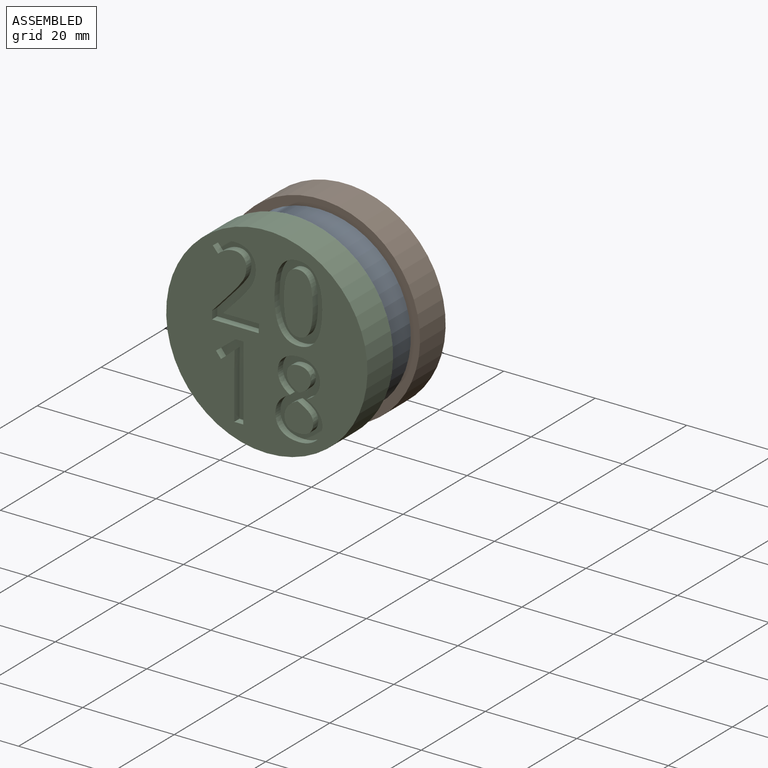
[diagram: assembled view]
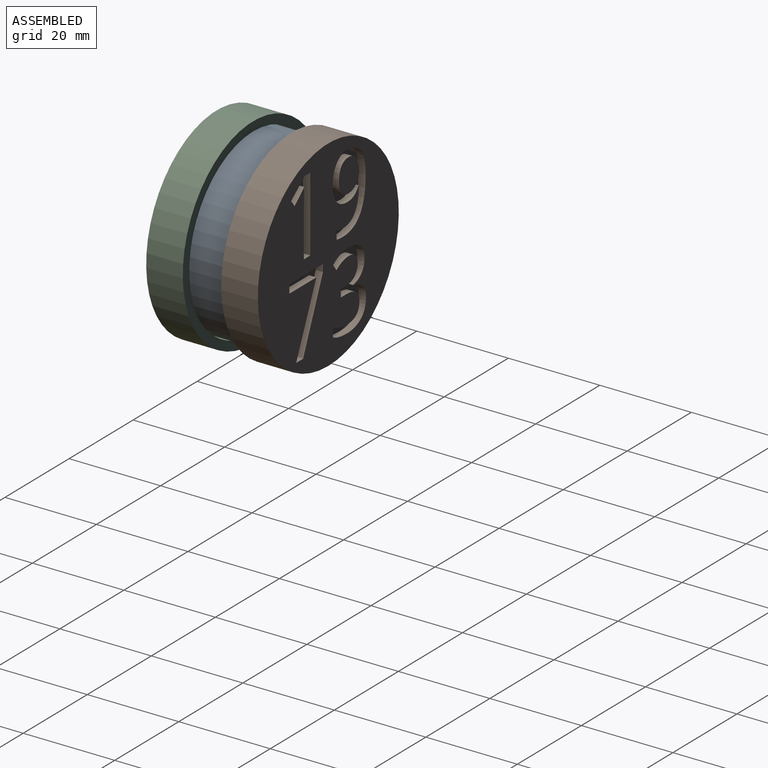
[diagram: assembled view, second angle]
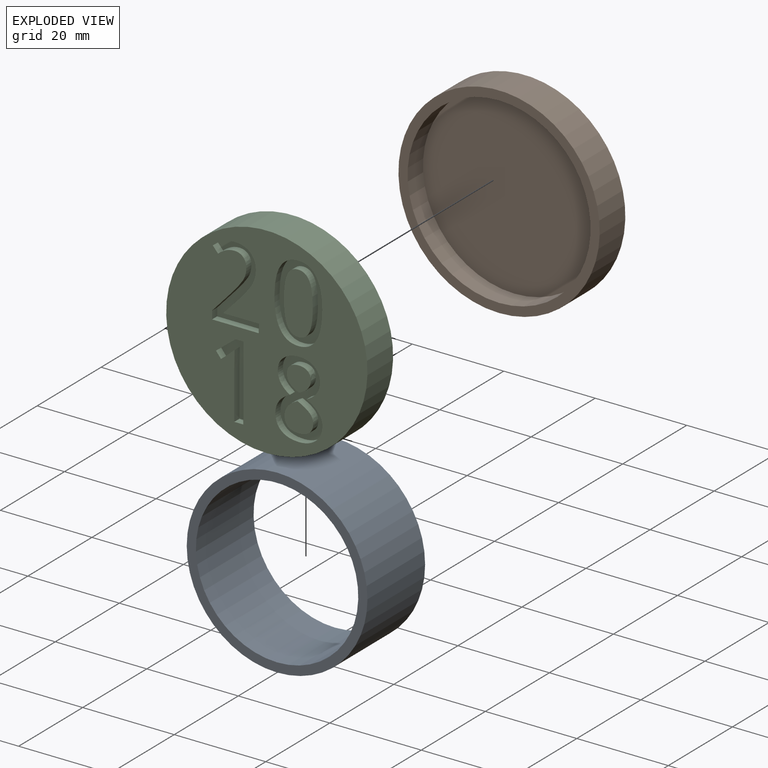
[diagram: exploded view]
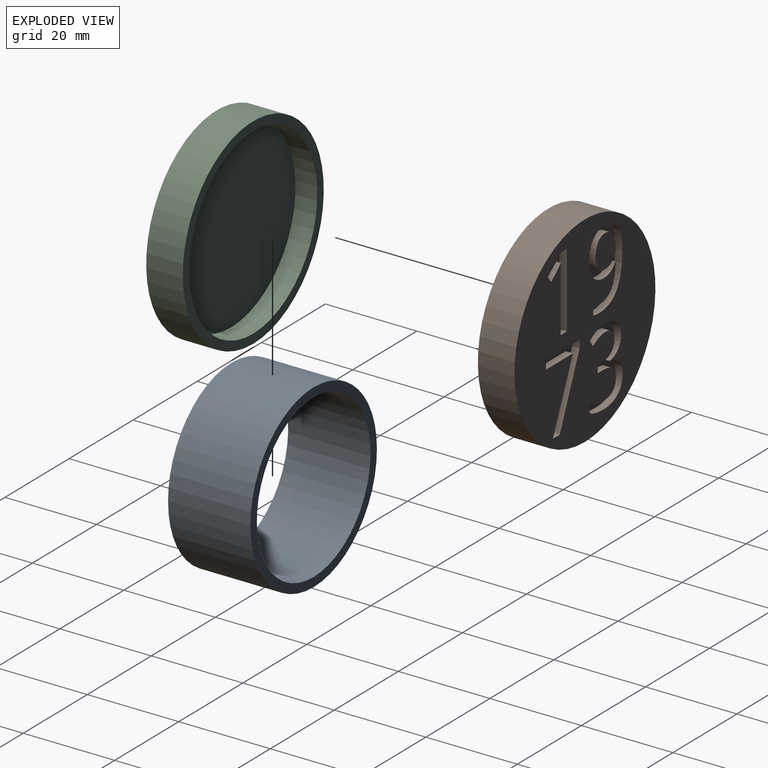
[diagram: exploded view, second angle]
ASSEMBLY  parts=3 mates=2
PART A: 4 faces, bbox 39.5x18x39.5 mm
  f0: cylinder r=17.75mm len=35.5mm, axis (0,1,0), area 2007.5mm2, adj f2,f3
  f1: cylinder r=19.75mm len=39.5mm, axis (0,1,0), area 2233.7mm2, adj f2,f3
  f2: plane 39.5x39.5mm, normal (0,-1,0), area 235.6mm2, adj f0,f1
  f3: plane 39.5x39.5mm, normal (0,1,0), area 235.6mm2, adj f0,f1
PART B: 71 faces, bbox 44x8x44 mm
  f0: plane 44x44mm, normal (0,-1,0), area 1258.5mm2, adj f1,f5,f6,f7,f8,f9,f10,f11
  f1: cylinder r=22mm len=44mm, axis (0,1,0), area 1105.8mm2, adj f0,f2
  f2: plane 44x44mm, normal (0,1,0), area 263.9mm2, adj f1,f3
  f3: cylinder r=20mm len=40mm, axis (0,1,0), area 603.2mm2, adj f2,f4
  f4: plane 40x40mm, normal (0,1,0), area 1256.6mm2, adj f3
  f5: plane 1.97x1.6mm, normal (0,0,1), area 3.2mm2, adj f0,f6,f13,f14
  f6: plane 16.36x1.6mm, normal (-1,0,0), area 26.2mm2, adj f0,f5,f7,f14
  f7: plane 1.68x1.6mm, normal (0,0,-1), area 2.7mm2, adj f0,f6,f8,f14
  f8: plane 4.29x3.35mm, normal (0.62,0,-0.79), area 8.7mm2, adj f0,f7,f9,f14
  f9: plane 1.6x1.38mm, normal (0.79,0,0.62), area 2.8mm2, adj f0,f8,f10,f14
  f10: plane 1.65x1.6mm, normal (-0.63,0,0.77), area 3.4mm2, adj f0,f9,f11,f14
  f11: extruded ~1.6x1.35mm, area 3mm2, adj f0,f10,f12,f14
  f12: extruded ~4.04x1.6mm, area 6.5mm2, adj f0,f11,f13,f14
  f13: plane 10.22x1.6mm, normal (1,0,0), area 16.3mm2, adj f0,f5,f12,f14
  f14: plane 16.36x5.97mm, normal (0,-1,0), area 39.5mm2, adj f5,f6,f7,f8,f9,f10,f11,f12
  f15: plane 14.5x6.3mm, normal (0.92,0,-0.4), area 25.3mm2, adj f0,f16,f21,f22
  f16: plane 2.17x1.6mm, normal (0,0,1), area 3.5mm2, adj f0,f15,f17,f22
  f17: plane 14.74x6.21mm, normal (-0.92,0,0.39), area 25.6mm2, adj f0,f16,f18,f22
  f18: plane 1.62x1.6mm, normal (-1,0,0), area 2.6mm2, adj f0,f17,f19,f22
  f19: plane 10.52x1.6mm, normal (0,0,-1), area 16.8mm2, adj f0,f18,f20,f22
  f20: plane 1.86x1.6mm, normal (1,0,0), area 3mm2, adj f0,f19,f21,f22
  f21: plane 8.44x1.6mm, normal (0,0,1), area 13.5mm2, adj f0,f15,f20,f22
  f22: plane 16.36x10.52mm, normal (0,-1,0), area 49.6mm2, adj f15,f16,f17,f18,f19,f20,f21
  f23: plane 1.6x0.06mm, normal (-1,0,0), area 0.1mm2, adj f0,f24,f45,f46
  f24: extruded ~2.62x1.6mm, area 4.8mm2, adj f0,f23,f25,f46
  f25: extruded ~2.58x1.6mm, area 4.5mm2, adj f0,f24,f26,f46
  f26: extruded ~2.95x1.6mm, area 5.3mm2, adj f0,f25,f27,f46
  f27: extruded ~3.6x1.6mm, area 6.1mm2, adj f0,f26,f28,f46
  f28: extruded ~4.88x1.68mm, area 8.4mm2, adj f0,f27,f29,f46
  f29: plane 1.6x1.4mm, normal (0.81,0,0.59), area 2.8mm2, adj f0,f28,f30,f46
  f30: extruded ~3.85x1.6mm, area 6.6mm2, adj f0,f29,f31,f46
  f31: extruded ~2.04x1.6mm, area 3.5mm2, adj f0,f30,f32,f46
  f32: extruded ~1.8x1.6mm, area 3.2mm2, adj f0,f31,f33,f46
  f33: extruded ~2.25x1.6mm, area 4.1mm2, adj f0,f32,f34,f46
  f34: extruded ~2.78x1.6mm, area 4.7mm2, adj f0,f33,f35,f46
  f35: plane 1.6x1.49mm, normal (0,0,-1), area 2.4mm2, adj f0,f34,f36,f46
  f36: plane 1.69x1.6mm, normal (1,0,0), area 2.7mm2, adj f0,f35,f37,f46
  f37: plane 1.6x1.49mm, normal (0,0,1), area 2.4mm2, adj f0,f36,f38,f46
  f38: extruded ~4.26x2.89mm, area 9.4mm2, adj f0,f37,f39,f46
  f39: extruded ~3.96x3.23mm, area 9.4mm2, adj f0,f38,f40,f46
  f40: extruded ~4.29x1.6mm, area 7.1mm2, adj f0,f39,f41,f46
  f41: plane 1.91x1.6mm, normal (1,0,0), area 3mm2, adj f0,f40,f42,f46
  f42: extruded ~4.33x1.6mm, area 7.1mm2, adj f0,f41,f43,f46
  f43: extruded ~4.46x1.6mm, area 7.6mm2, adj f0,f42,f44,f46
  f44: extruded ~3.58x1.6mm, area 6.4mm2, adj f0,f43,f45,f46
  f45: extruded ~4.04x3.9mm, area 10mm2, adj f0,f23,f44,f46
  f46: plane 16.82x10.34mm, normal (0,-1,0), area 64.1mm2, adj f23,f24,f25,f26,f27,f28,f29,f30
  f47: extruded ~2.5x1.6mm, area 4.3mm2, adj f48,f68,f69,f70
  f48: extruded ~2.81x1.6mm, area 4.8mm2, adj f47,f49,f69,f70
  f49: extruded ~2.23x1.6mm, area 4mm2, adj f48,f50,f69,f70
  f50: extruded ~2.38x1.6mm, area 4.5mm2, adj f49,f51,f69,f70
  f51: extruded ~2.93x1.6mm, area 5mm2, adj f50,f52,f69,f70
  f52: extruded ~2.07x1.6mm, area 3.8mm2, adj f51,f53,f69,f70
  f53: extruded ~2.38x1.6mm, area 4.2mm2, adj f52,f68,f69,f70
  f54: plane 1.74x1.6mm, normal (1,0,0), area 2.8mm2, adj f0,f55,f67,f69
  f55: extruded ~1.93x1.6mm, area 3.1mm2, adj f0,f54,f56,f69
  f56: extruded ~9.6x7.15mm, area 21.8mm2, adj f0,f55,f57,f69
  f57: extruded ~5.3x1.6mm, area 8.9mm2, adj f0,f56,f58,f69
  f58: extruded ~3.9x1.91mm, area 7.2mm2, adj f0,f57,f59,f69
  f59: extruded ~3.62x1.6mm, area 6.5mm2, adj f0,f58,f60,f69
  f60: extruded ~4.03x1.6mm, area 7mm2, adj f0,f59,f61,f69
  f61: extruded ~3.65x1.6mm, area 6.3mm2, adj f0,f60,f62,f69
  f62: extruded ~3.41x1.6mm, area 6mm2, adj f0,f61,f63,f69
  f63: extruded ~3.45x1.91mm, area 6.6mm2, adj f0,f62,f64,f69
  f64: plane 1.6x0.13mm, normal (0,0,1), area 0.2mm2, adj f0,f63,f65,f69
  f65: extruded ~5x1.6mm, area 8.4mm2, adj f0,f64,f66,f69
  f66: extruded ~3.77x1.6mm, area 6.8mm2, adj f0,f65,f67,f69
  f67: extruded ~1.86x1.6mm, area 3mm2, adj f0,f54,f66,f69
  f68: extruded ~2.19x1.6mm, area 3.9mm2, adj f47,f53,f69,f70
  f69: plane 16.82x10.31mm, normal (0,-1,0), area 72.5mm2, adj f47,f48,f49,f50,f51,f52,f53,f54
  f70: plane 7.15x6.3mm, normal (0,-1,0), area 36.3mm2, adj f47,f48,f49,f50,f51,f52,f53,f68
PART C: 79 faces, bbox 44x8x44 mm
  f0: plane 44x44mm, normal (0,-1,0), area 1139.5mm2, adj f1,f5,f6,f7,f8,f9,f10,f11
  f1: cylinder r=22mm len=44mm, axis (0,1,0), area 1105.8mm2, adj f0,f2
  f2: plane 44x44mm, normal (0,1,0), area 263.9mm2, adj f1,f3
  f3: cylinder r=20mm len=40mm, axis (0,1,0), area 603.2mm2, adj f2,f4
  f4: plane 40x40mm, normal (0,1,0), area 1256.6mm2, adj f3
  f5: plane 10.19x1.6mm, normal (0,0,1), area 16.3mm2, adj f0,f6,f22,f23
  f6: plane 1.86x1.6mm, normal (-1,0,0), area 3mm2, adj f0,f5,f7,f23
  f7: plane 7.7x1.6mm, normal (0,0,-1), area 12.3mm2, adj f0,f6,f8,f23
  f8: plane 1.6x0.09mm, normal (-1,0,0), area 0.1mm2, adj f0,f7,f9,f23
  f9: plane 3.34x3.14mm, normal (-0.73,0,0.68), area 7.3mm2, adj f0,f8,f10,f23
  f10: extruded ~4.2x3.26mm, area 8.5mm2, adj f0,f9,f11,f23
  f11: extruded ~2.73x1.6mm, area 4.5mm2, adj f0,f10,f12,f23
  f12: extruded ~3.19x1.6mm, area 5.6mm2, adj f0,f11,f13,f23
  f13: extruded ~3.43x1.6mm, area 5.9mm2, adj f0,f12,f14,f23
  f14: extruded ~4.72x1.92mm, area 8.3mm2, adj f0,f13,f15,f23
  f15: plane 1.6x1.33mm, normal (0.76,0,0.65), area 2.8mm2, adj f0,f14,f16,f23
  f16: extruded ~3.56x1.6mm, area 6.3mm2, adj f0,f15,f17,f23
  f17: extruded ~1.92x1.6mm, area 3.4mm2, adj f0,f16,f18,f23
  f18: extruded ~2x1.6mm, area 3.5mm2, adj f0,f17,f19,f23
  f19: extruded ~2.58x1.6mm, area 4.3mm2, adj f0,f18,f20,f23
  f20: extruded ~3.55x2.87mm, area 7.3mm2, adj f0,f19,f21,f23
  f21: plane 4.26x3.92mm, normal (0.74,0,-0.68), area 9.3mm2, adj f0,f20,f22,f23
  f22: plane 1.75x1.6mm, normal (1,0,0), area 2.8mm2, adj f0,f5,f21,f23
  f23: plane 16.59x10.19mm, normal (0,-1,0), area 61.5mm2, adj f5,f6,f7,f8,f9,f10,f11,f12
  f24: extruded ~3.64x2.84mm, area 7.8mm2, adj f25,f49,f50,f77
  f25: plane 1.6x0.33mm, normal (0.43,0,0.9), area 0.6mm2, adj f24,f26,f50,f77
  f26: extruded ~2.4x1.6mm, area 4.6mm2, adj f25,f27,f50,f77
  f27: extruded ~1.79x1.6mm, area 3.1mm2, adj f26,f28,f50,f77
  f28: extruded ~2.04x1.6mm, area 3.6mm2, adj f27,f29,f50,f77
  f29: extruded ~2.36x1.6mm, area 4mm2, adj f28,f49,f50,f77
  f30: extruded ~3.11x2.6mm, area 6.9mm2, adj f31,f47,f50,f51
  f31: extruded ~2.08x1.6mm, area 4mm2, adj f30,f32,f50,f51
  f32: extruded ~1.71x1.6mm, area 2.9mm2, adj f31,f33,f50,f51
  f33: extruded ~1.72x1.6mm, area 3.1mm2, adj f32,f34,f50,f51
  f34: extruded ~1.89x1.6mm, area 3.2mm2, adj f33,f35,f50,f51
  f35: extruded ~1.93x1.6mm, area 3.3mm2, adj f34,f47,f50,f51
  f36: extruded ~4.4x3.46mm, area 9.4mm2, adj f0,f37,f48,f50
  f37: extruded ~4.02x2.93mm, area 8.4mm2, adj f0,f36,f38,f50
  f38: extruded ~2.88x1.6mm, area 5.2mm2, adj f0,f37,f39,f50
  f39: extruded ~3.33x1.6mm, area 5.7mm2, adj f0,f38,f40,f50
  f40: extruded ~3.3x1.6mm, area 5.7mm2, adj f0,f39,f41,f50
  f41: extruded ~2.86x1.6mm, area 5.2mm2, adj f0,f40,f42,f50
  f42: extruded ~4.13x2.63mm, area 8.2mm2, adj f0,f41,f43,f50
  f43: extruded ~4.4x3.15mm, area 9.2mm2, adj f0,f42,f44,f50
  f44: extruded ~3.24x1.6mm, area 5.8mm2, adj f0,f43,f45,f50
  f45: extruded ~3.77x1.6mm, area 6.4mm2, adj f0,f44,f46,f50
  f46: extruded ~3.73x1.6mm, area 6.4mm2, adj f0,f45,f48,f50
  f47: extruded ~1.72x1.6mm, area 3.1mm2, adj f30,f35,f50,f51
  f48: extruded ~3.26x1.6mm, area 5.9mm2, adj f0,f36,f46,f50
  f49: extruded ~3.09x2.69mm, area 7.5mm2, adj f24,f29,f50,f77
  f50: plane 16.84x10.26mm, normal (0,-1,0), area 82.3mm2, adj f24,f25,f26,f27,f28,f29,f30,f31
  f51: plane 5.43x5.22mm, normal (0,-1,0), area 21.5mm2, adj f30,f31,f32,f33,f34,f35,f47
  f52: extruded ~2.42x1.6mm, area 4.9mm2, adj f53,f65,f66,f78
  f53: extruded ~2.38x1.6mm, area 4.8mm2, adj f52,f54,f66,f78
  f54: extruded ~5.13x1.6mm, area 8.3mm2, adj f53,f55,f66,f78
  f55: extruded ~5.11x1.6mm, area 8.3mm2, adj f54,f56,f66,f78
  f56: extruded ~2.38x1.6mm, area 4.8mm2, adj f55,f57,f66,f78
  f57: extruded ~2.42x1.6mm, area 4.9mm2, adj f56,f58,f66,f78
  f58: extruded ~5.1x1.6mm, area 8.3mm2, adj f57,f65,f66,f78
  f59: extruded ~3.89x2.17mm, area 7.5mm2, adj f0,f60,f64,f66
  f60: extruded ~8.43x5.25mm, area 17.9mm2, adj f0,f59,f61,f66
  f61: extruded ~6.25x1.6mm, area 10.3mm2, adj f0,f60,f62,f66
  f62: extruded ~3.92x2.17mm, area 7.5mm2, adj f0,f61,f63,f66
  f63: extruded ~8.41x5.21mm, area 17.9mm2, adj f0,f62,f64,f66
  f64: extruded ~6.26x1.6mm, area 10.4mm2, adj f0,f59,f63,f66
  f65: extruded ~5.12x1.6mm, area 8.3mm2, adj f52,f58,f66,f78
  f66: plane 16.84x10.45mm, normal (0,-1,0), area 74.9mm2, adj f52,f53,f54,f55,f56,f57,f58,f59
  f67: plane 1.97x1.6mm, normal (0,0,1), area 3.2mm2, adj f0,f68,f75,f76
  f68: plane 16.36x1.6mm, normal (-1,0,0), area 26.2mm2, adj f0,f67,f69,f76
  f69: plane 1.68x1.6mm, normal (0,0,-1), area 2.7mm2, adj f0,f68,f70,f76
  f70: plane 4.29x3.35mm, normal (0.62,0,-0.79), area 8.7mm2, adj f0,f69,f71,f76
  f71: plane 1.6x1.38mm, normal (0.79,0,0.62), area 2.8mm2, adj f0,f70,f72,f76
  f72: plane 1.65x1.6mm, normal (-0.63,0,0.77), area 3.4mm2, adj f0,f71,f73,f76
  f73: extruded ~1.6x1.35mm, area 3mm2, adj f0,f72,f74,f76
  f74: extruded ~4.04x1.6mm, area 6.5mm2, adj f0,f73,f75,f76
  f75: plane 10.22x1.6mm, normal (1,0,0), area 16.3mm2, adj f0,f67,f74,f76
  f76: plane 16.36x5.97mm, normal (0,-1,0), area 39.5mm2, adj f67,f68,f69,f70,f71,f72,f73,f74
  f77: plane 6.32x6.28mm, normal (0,-1,0), area 30mm2, adj f24,f25,f26,f27,f28,f29,f49
  f78: plane 13.36x6.32mm, normal (0,-1,0), area 71.4mm2, adj f52,f53,f54,f55,f56,f57,f58,f65
PLACE A rot(axis=(0,0,1),0deg) t=(1.24,8.35,-0.95)mm
PLACE B rot(axis=(0,0,-1),180deg) t=(1.24,3.55,-0.95)mm
PLACE C t=(1.24,-4.85,-0.95)mm
MATE fastened A.f0 <-> B.f3  axis (0,1,0) through (1.24,8.35,-0.95)mm
MATE fastened A.f0 <-> C.f3  axis (0,-1,0) through (1.24,-9.65,-0.95)mm
